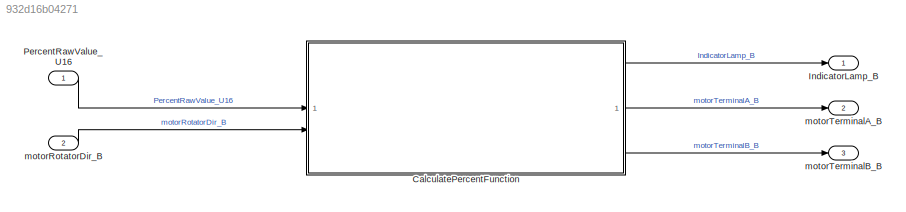
MODEL slx_932d16b04271
KIND model
CONFIG AbsTol = auto
CONFIG EnableMultiTasking = off
CONFIG FixedStep = 0.001
CONFIG MaxStep = auto
CONFIG MinStep = auto
CONFIG RelTol = 1e-3
CONFIG SampleTimeConstraint = Unconstrained
CONFIG SolverName = FixedStepDiscrete
CONFIG StartTime = 0.0
CONFIG StopTime = 1
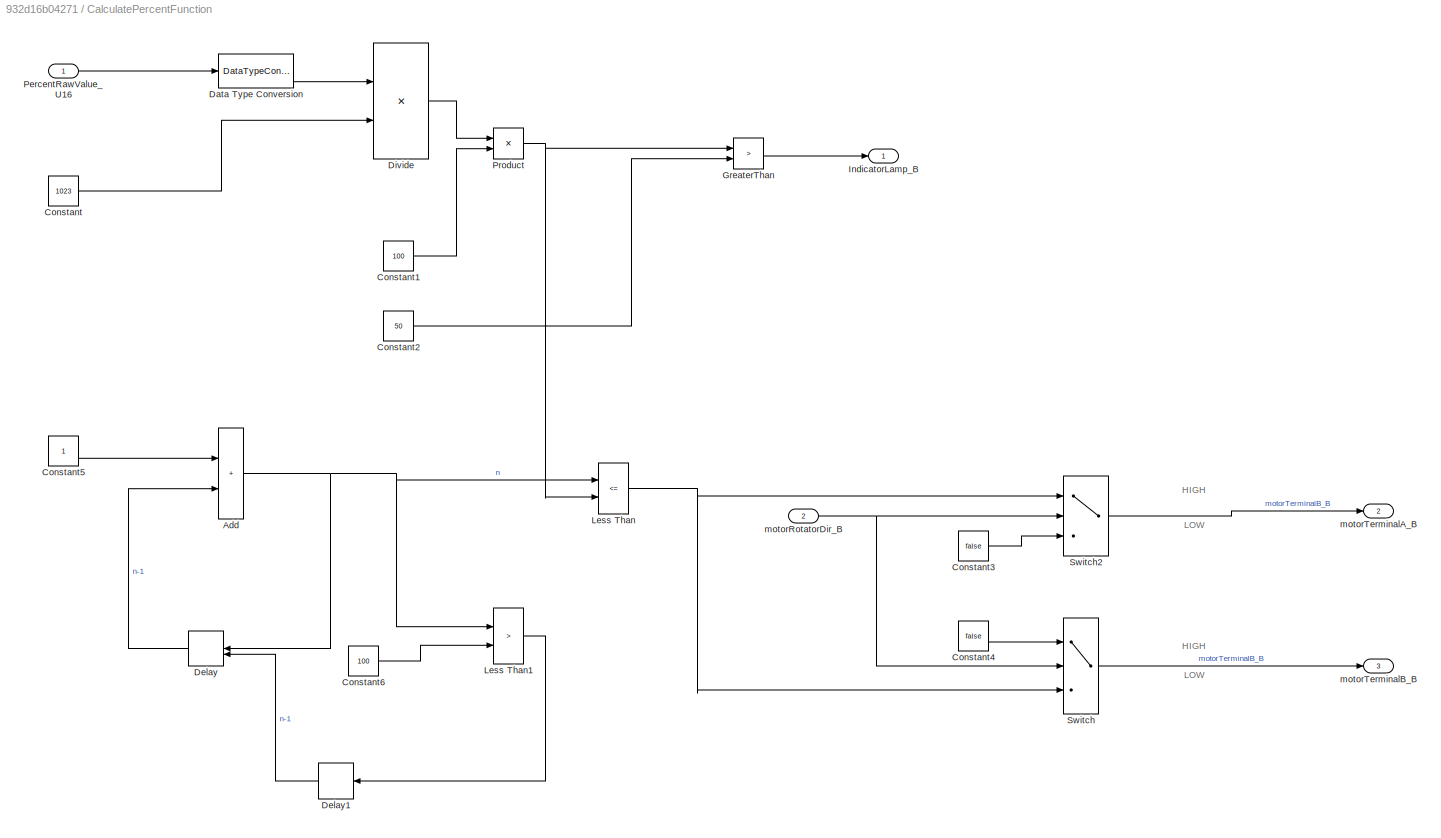
BLOCK [SubSystem] CalculatePercentFunction
  RTWFcnNameOpts = Use subsystem name
  RTWFileNameOpts = Use subsystem name
  RTWSystemCode = Reusable function
  TreatAsAtomicUnit = on
BLOCK [Sum] CalculatePercentFunction/Add
  IconShape = rectangular
BLOCK [Constant] CalculatePercentFunction/Constant
  OutDataTypeStr = single
  Value = 1023
BLOCK [Constant] CalculatePercentFunction/Constant1
  OutDataTypeStr = uint8
  Value = 100
BLOCK [Constant] CalculatePercentFunction/Constant2
  OutDataTypeStr = uint8
  Value = 50
BLOCK [Constant] CalculatePercentFunction/Constant3
  OutDataTypeStr = boolean
  Value = false
BLOCK [Constant] CalculatePercentFunction/Constant4
  OutDataTypeStr = boolean
  Value = false
BLOCK [Constant] CalculatePercentFunction/Constant5
  OutDataTypeStr = uint8
BLOCK [Constant] CalculatePercentFunction/Constant6
  OutDataTypeStr = uint8
  Value = 100
BLOCK [DataTypeConversion] CalculatePercentFunction/Data Type Conversion
  OutDataTypeStr = single
  RndMeth = Floor
  SaturateOnIntegerOverflow = off
BLOCK [Delay] CalculatePercentFunction/Delay
  DelayLength = 1
  ExternalReset = Rising
  InputPortMap = u0,r5
  NameLocation = top
BLOCK [Delay] CalculatePercentFunction/Delay1
  DelayLength = 1
  InputPortMap = u0
  NameLocation = top
BLOCK [Product] CalculatePercentFunction/Divide
  Inputs = */
BLOCK [RelationalOperator] CalculatePercentFunction/GreaterThan
  InputSameDT = off
  Operator = >
  OutDataTypeStr = boolean
  RndMeth = Simplest
BLOCK [Outport] CalculatePercentFunction/IndicatorLamp_B
  OutDataTypeStr = boolean
BLOCK [RelationalOperator] CalculatePercentFunction/Less Than
  InputSameDT = off
  Operator = <=
  OutDataTypeStr = boolean
  RndMeth = Simplest
BLOCK [RelationalOperator] CalculatePercentFunction/Less Than1
  InputSameDT = off
  Operator = >
  OutDataTypeStr = boolean
  RndMeth = Simplest
BLOCK [Inport] CalculatePercentFunction/PercentRawValue_U16
BLOCK [Product] CalculatePercentFunction/Product
BLOCK [Switch] CalculatePercentFunction/Switch
  Criteria = u2 > Threshold
  InputSameDT = off
  SaturateOnIntegerOverflow = off
BLOCK [Switch] CalculatePercentFunction/Switch2
  Criteria = u2 ~= 0
  InputSameDT = off
  SaturateOnIntegerOverflow = off
BLOCK [Inport] CalculatePercentFunction/motorRotatorDir_B
  Port = 2
BLOCK [Outport] CalculatePercentFunction/motorTerminalA_B
  OutDataTypeStr = boolean
  Port = 2
BLOCK [Outport] CalculatePercentFunction/motorTerminalB_B
  OutDataTypeStr = boolean
  Port = 3
BLOCK [Outport] IndicatorLamp_B
  OutDataTypeStr = boolean
BLOCK [Inport] PercentRawValue_U16
BLOCK [Inport] motorRotatorDir_B
  Port = 2
BLOCK [Outport] motorTerminalA_B
  OutDataTypeStr = boolean
  Port = 2
BLOCK [Outport] motorTerminalB_B
  OutDataTypeStr = boolean
  Port = 3
ANNOTATION CalculatePercentFunction: HIGH
ANNOTATION CalculatePercentFunction: LOW
NET CalculatePercentFunction/Add:1 -> CalculatePercentFunction/Delay:1, CalculatePercentFunction/Less Than1:1, CalculatePercentFunction/Less Than:1
LINE CalculatePercentFunction/Constant1:1 -> CalculatePercentFunction/Product:2
LINE CalculatePercentFunction/Constant2:1 -> CalculatePercentFunction/GreaterThan:2
LINE CalculatePercentFunction/Constant3:1 -> CalculatePercentFunction/Switch2:3
LINE CalculatePercentFunction/Constant4:1 -> CalculatePercentFunction/Switch:1
LINE CalculatePercentFunction/Constant5:1 -> CalculatePercentFunction/Add:1
LINE CalculatePercentFunction/Constant6:1 -> CalculatePercentFunction/Less Than1:2
LINE CalculatePercentFunction/Constant:1 -> CalculatePercentFunction/Divide:2
LINE CalculatePercentFunction/Data Type Conversion:1 -> CalculatePercentFunction/Divide:1
LINE CalculatePercentFunction/Delay1:1 -> CalculatePercentFunction/Delay:2
LINE CalculatePercentFunction/Delay:1 -> CalculatePercentFunction/Add:2
LINE CalculatePercentFunction/Divide:1 -> CalculatePercentFunction/Product:1
LINE CalculatePercentFunction/GreaterThan:1 -> CalculatePercentFunction/IndicatorLamp_B:1
LINE CalculatePercentFunction/Less Than1:1 -> CalculatePercentFunction/Delay1:1
NET CalculatePercentFunction/Less Than:1 -> CalculatePercentFunction/Switch2:1, CalculatePercentFunction/Switch:3
LINE CalculatePercentFunction/PercentRawValue_U16:1 -> CalculatePercentFunction/Data Type Conversion:1
NET CalculatePercentFunction/Product:1 -> CalculatePercentFunction/GreaterThan:1, CalculatePercentFunction/Less Than:2
LINE CalculatePercentFunction/Switch2:1 -> CalculatePercentFunction/motorTerminalA_B:1
LINE CalculatePercentFunction/Switch:1 -> CalculatePercentFunction/motorTerminalB_B:1
NET CalculatePercentFunction/motorRotatorDir_B:1 -> CalculatePercentFunction/Switch2:2, CalculatePercentFunction/Switch:2
LINE CalculatePercentFunction:1 -> IndicatorLamp_B:1
LINE CalculatePercentFunction:2 -> motorTerminalA_B:1
LINE CalculatePercentFunction:3 -> motorTerminalB_B:1
LINE PercentRawValue_U16:1 -> CalculatePercentFunction:1
LINE motorRotatorDir_B:1 -> CalculatePercentFunction:2
note: NET lines group one-source signal fan-out (src -> all destinations, sorted); 1:1 wires keep LINE
